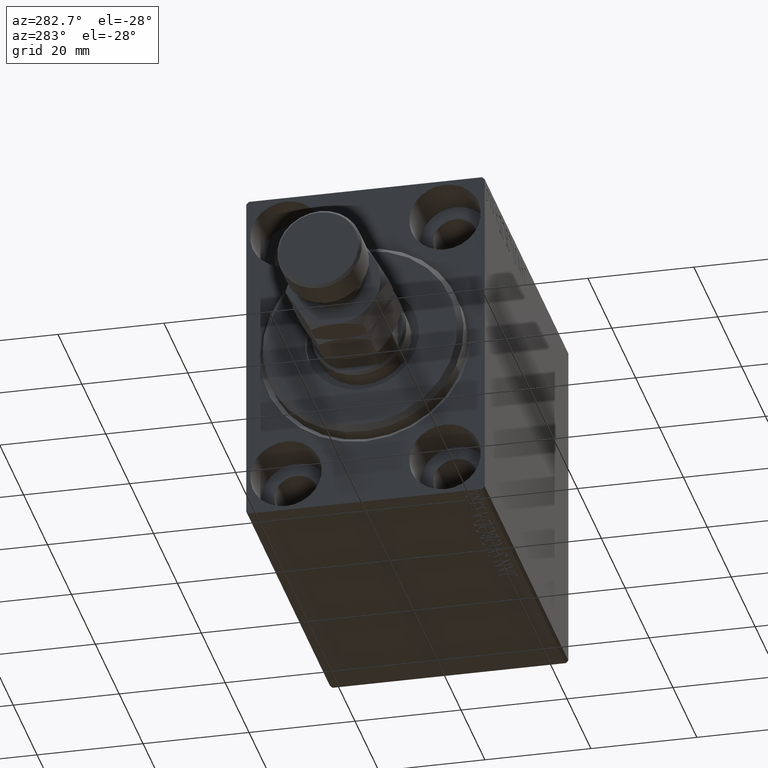
[diagram: clean part render]
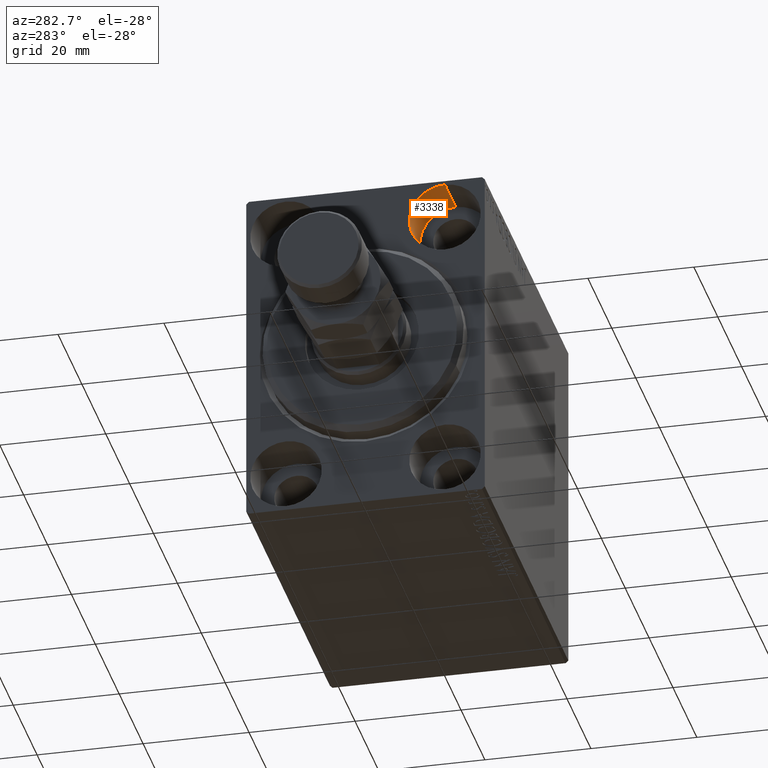
[diagram: same view with one face highlighted and labeled with its STEP entity id]
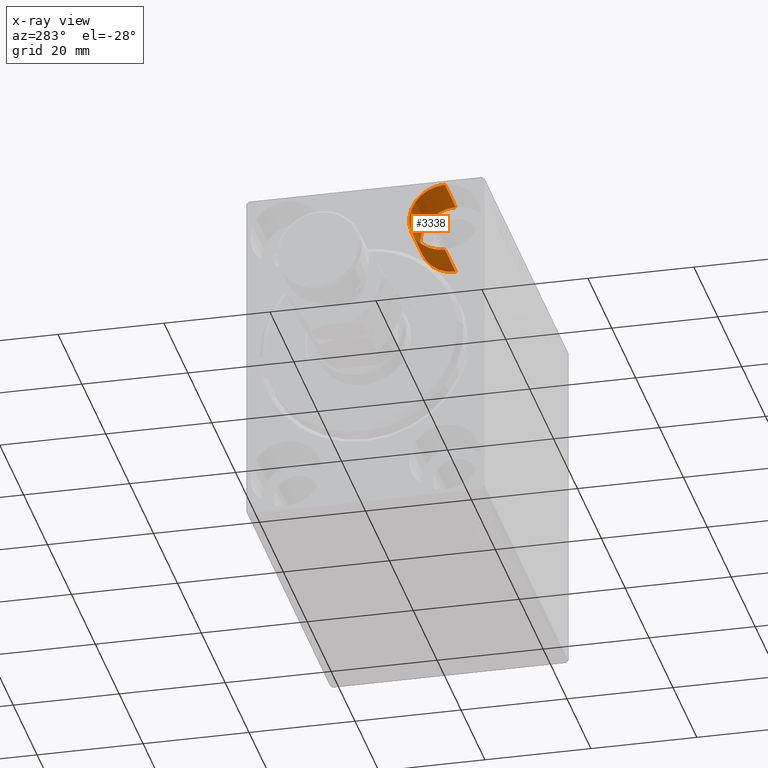
[diagram: x-ray of the same camera — body ghosted, the highlighted face saturated]
A machine part, auxiliary view. The second image highlights one B-rep face of the part: STEP entity #3338.
The next image is the same camera in x-ray: the body ghosted, the highlighted face saturated — about 0% of this face is hidden behind the body in this view.
In plain terms, the highlighted cylindrical surface (partial cylindrical patch) has radius 6.75 mm, axis along (-1, -0, -0).
Its self-contained STEP definition (entity closure, byte-faithful):
#642 = CIRCLE ( 'NONE', #27752, 6.749999999999999112 ) ;
#3338 = ADVANCED_FACE ( 'NONE', ( #16583 ), #27145, .F. ) ;
#3612 = VERTEX_POINT ( 'NONE', #27313 ) ;
#4117 = DIRECTION ( 'NONE',  ( -1.000000000000000000, -0.000000000000000000, -0.000000000000000000 ) ) ;
#4304 = VERTEX_POINT ( 'NONE', #23531 ) ;
#8394 = AXIS2_PLACEMENT_3D ( 'NONE', #34279, #20480, #41645 ) ;
#8641 = DIRECTION ( 'NONE',  ( -1.000000000000000000, -0.000000000000000000, -0.000000000000000000 ) ) ;
#11380 = DIRECTION ( 'NONE',  ( 0.000000000000000000, 0.000000000000000000, 1.000000000000000000 ) ) ;
#11563 = EDGE_CURVE ( 'NONE', #4304, #13385, #14889, .T. ) ;
#12302 = ORIENTED_EDGE ( 'NONE', *, *, #11563, .T. ) ;
#13385 = VERTEX_POINT ( 'NONE', #24591 ) ;
#14889 = LINE ( 'NONE', #22013, #41516 ) ;
#16583 = FACE_OUTER_BOUND ( 'NONE', #18167, .T. ) ;
#17202 = ORIENTED_EDGE ( 'NONE', *, *, #32806, .F. ) ;
#18167 = EDGE_LOOP ( 'NONE', ( #31344, #17202, #12302, #28704 ) ) ;
#18264 = DIRECTION ( 'NONE',  ( -1.000000000000000000, 0.000000000000000000, 0.000000000000000000 ) ) ;
#20480 = DIRECTION ( 'NONE',  ( -1.000000000000000000, -0.000000000000000000, -0.000000000000000000 ) ) ;
#20855 = VERTEX_POINT ( 'NONE', #37701 ) ;
#21634 = EDGE_CURVE ( 'NONE', #13385, #20855, #22426, .T. ) ;
#22013 = CARTESIAN_POINT ( 'NONE',  ( 9.000000000000000000, -14.99999999999999645, 31.75000000000000000 ) ) ;
#22426 = CIRCLE ( 'NONE', #34169, 6.749999999999999112 ) ;
#23531 = CARTESIAN_POINT ( 'NONE',  ( 9.000000000000000000, -14.99999999999999645, 31.75000000000000000 ) ) ;
#24591 = CARTESIAN_POINT ( 'NONE',  ( 0.000000000000000000, -14.99999999999999645, 31.75000000000000000 ) ) ;
#25540 = VECTOR ( 'NONE', #8641, 1000.000000000000000 ) ;
#27145 = CYLINDRICAL_SURFACE ( 'NONE', #8394, 6.749999999999999112 ) ;
#27313 = CARTESIAN_POINT ( 'NONE',  ( 9.000000000000000000, -14.99999999999999645, 18.25000000000000355 ) ) ;
#27752 = AXIS2_PLACEMENT_3D ( 'NONE', #43306, #28817, #32275 ) ;
#28704 = ORIENTED_EDGE ( 'NONE', *, *, #21634, .T. ) ;
#28817 = DIRECTION ( 'NONE',  ( -1.000000000000000000, 0.000000000000000000, 0.000000000000000000 ) ) ;
#31344 = ORIENTED_EDGE ( 'NONE', *, *, #31695, .F. ) ;
#31695 = EDGE_CURVE ( 'NONE', #3612, #20855, #43569, .T. ) ;
#32275 = DIRECTION ( 'NONE',  ( 0.000000000000000000, 0.000000000000000000, 1.000000000000000000 ) ) ;
#32806 = EDGE_CURVE ( 'NONE', #4304, #3612, #642, .T. ) ;
#34169 = AXIS2_PLACEMENT_3D ( 'NONE', #35968, #18264, #11380 ) ;
#34279 = CARTESIAN_POINT ( 'NONE',  ( 9.000000000000000000, -14.99999999999999645, 25.00000000000000000 ) ) ;
#35968 = CARTESIAN_POINT ( 'NONE',  ( 0.000000000000000000, -14.99999999999999645, 25.00000000000000000 ) ) ;
#37701 = CARTESIAN_POINT ( 'NONE',  ( 0.000000000000000000, -14.99999999999999645, 18.25000000000000355 ) ) ;
#40123 = CARTESIAN_POINT ( 'NONE',  ( 9.000000000000000000, -14.99999999999999645, 18.25000000000000355 ) ) ;
#41516 = VECTOR ( 'NONE', #4117, 1000.000000000000000 ) ;
#41645 = DIRECTION ( 'NONE',  ( 0.000000000000000000, 0.000000000000000000, 1.000000000000000000 ) ) ;
#43306 = CARTESIAN_POINT ( 'NONE',  ( 9.000000000000000000, -14.99999999999999645, 25.00000000000000000 ) ) ;
#43569 = LINE ( 'NONE', #40123, #25540 ) ;